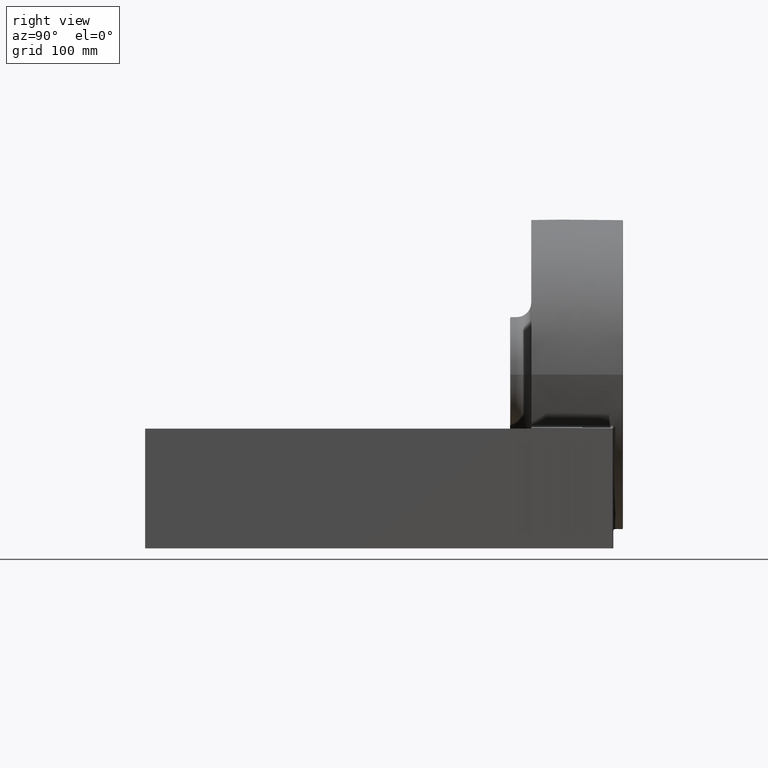
[diagram: clean part render]
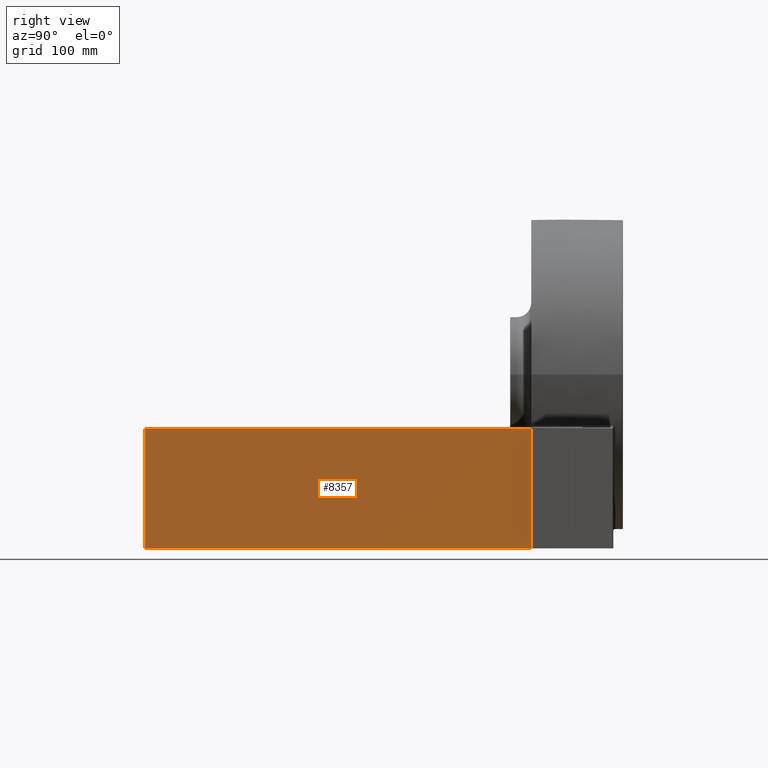
[diagram: same view with one face highlighted and labeled with its STEP entity id]
A machine part, right view. The second image highlights one B-rep face of the part: STEP entity #8357.
In plain terms, the highlighted planar face has unit normal (-1, 0, 0).
Its self-contained STEP definition (entity closure, byte-faithful):
#521 = CARTESIAN_POINT ( 'NONE',  ( 190.0000000000000000, 0.0000000000000000000, -124.0000000000000000 ) ) ;
#702 = EDGE_CURVE ( 'NONE', #5874, #8187, #1199, .T. ) ;
#1143 = DIRECTION ( 'NONE',  ( 0.0000000000000000000, 0.0000000000000000000, -1.000000000000000000 ) ) ;
#1158 = CARTESIAN_POINT ( 'NONE',  ( 190.0000000000000000, 400.0000000000000000, 0.0000000000000000000 ) ) ;
#1199 = LINE ( 'NONE', #1158, #7578 ) ;
#1225 = DIRECTION ( 'NONE',  ( -0.0000000000000000000, -1.000000000000000000, -0.0000000000000000000 ) ) ;
#1766 = DIRECTION ( 'NONE',  ( 0.0000000000000000000, 0.0000000000000000000, -1.000000000000000000 ) ) ;
#1770 = EDGE_CURVE ( 'NONE', #2850, #1857, #1805, .T. ) ;
#1780 = CARTESIAN_POINT ( 'NONE',  ( 190.0000000000000000, 0.0000000000000000000, 0.0000000000000000000 ) ) ;
#1805 = LINE ( 'NONE', #1780, #5172 ) ;
#1857 = VERTEX_POINT ( 'NONE', #521 ) ;
#2519 = CARTESIAN_POINT ( 'NONE',  ( 190.0000000000000000, 0.0000000000000000000, 0.0000000000000000000 ) ) ;
#2850 = VERTEX_POINT ( 'NONE', #2519 ) ;
#5172 = VECTOR ( 'NONE', #1766, 1000.000000000000000 ) ;
#5324 = EDGE_CURVE ( 'NONE', #5874, #2850, #5906, .T. ) ;
#5863 = DIRECTION ( 'NONE',  ( -0.0000000000000000000, -1.000000000000000000, -0.0000000000000000000 ) ) ;
#5874 = VERTEX_POINT ( 'NONE', #8894 ) ;
#5885 = ORIENTED_EDGE ( 'NONE', *, *, #7107, .F. ) ;
#5906 = LINE ( 'NONE', #8009, #8571 ) ;
#5908 = CARTESIAN_POINT ( 'NONE',  ( 190.0000000000000000, 524.2577965360725329, -124.0000000000000000 ) ) ;
#5957 = LINE ( 'NONE', #5908, #6391 ) ;
#6066 = ORIENTED_EDGE ( 'NONE', *, *, #5324, .T. ) ;
#6180 = ORIENTED_EDGE ( 'NONE', *, *, #1770, .T. ) ;
#6391 = VECTOR ( 'NONE', #5863, 1000.000000000000000 ) ;
#7107 = EDGE_CURVE ( 'NONE', #8187, #1857, #5957, .T. ) ;
#7392 = AXIS2_PLACEMENT_3D ( 'NONE', #10247, #9458, #8184 ) ;
#7492 = ORIENTED_EDGE ( 'NONE', *, *, #702, .F. ) ;
#7578 = VECTOR ( 'NONE', #1143, 1000.000000000000000 ) ;
#8009 = CARTESIAN_POINT ( 'NONE',  ( 190.0000000000000000, 524.2577965360725329, 0.0000000000000000000 ) ) ;
#8184 = DIRECTION ( 'NONE',  ( 0.0000000000000000000, 0.0000000000000000000, 1.000000000000000000 ) ) ;
#8187 = VERTEX_POINT ( 'NONE', #10468 ) ;
#8357 = ADVANCED_FACE ( 'NONE', ( #10815 ), #10047, .F. ) ;
#8571 = VECTOR ( 'NONE', #1225, 1000.000000000000000 ) ;
#8806 = EDGE_LOOP ( 'NONE', ( #7492, #6066, #6180, #5885 ) ) ;
#8894 = CARTESIAN_POINT ( 'NONE',  ( 190.0000000000000000, 400.0000000000000000, 0.0000000000000000000 ) ) ;
#9458 = DIRECTION ( 'NONE',  ( -1.000000000000000000, 0.0000000000000000000, 0.0000000000000000000 ) ) ;
#10047 = PLANE ( 'NONE',  #7392 ) ;
#10247 = CARTESIAN_POINT ( 'NONE',  ( 190.0000000000000000, 524.2577965360725329, 0.0000000000000000000 ) ) ;
#10468 = CARTESIAN_POINT ( 'NONE',  ( 190.0000000000000000, 400.0000000000000000, -124.0000000000000000 ) ) ;
#10815 = FACE_OUTER_BOUND ( 'NONE', #8806, .T. ) ;